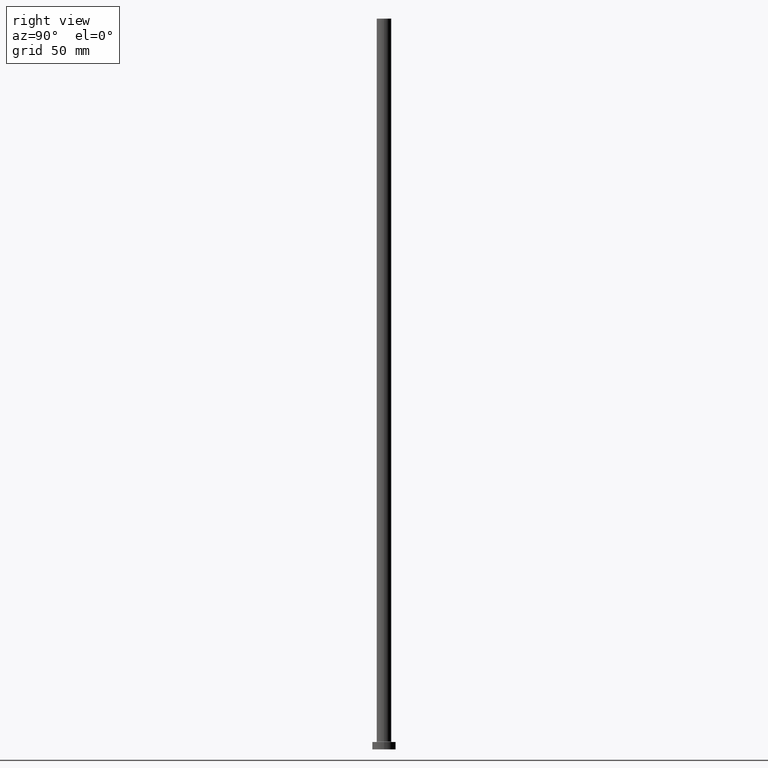
[diagram: clean part render]
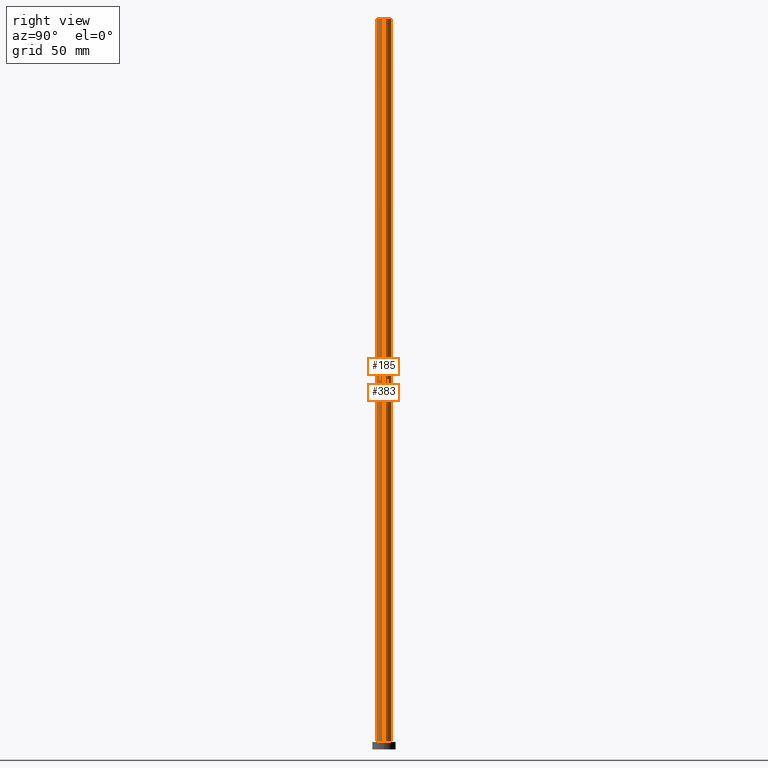
[diagram: same view with one multi-face feature highlighted, each face labeled with its STEP entity id]
A machine part, right view. The highlighted faces form ONE feature: a constant-radius fillet chain: 2 tangent blend faces with common blend radius 5 mm. The faces share edges in the B-rep.
Their STEP definitions:
[1] entity #185 (Cylinder):
#23 = AXIS2_PLACEMENT_3D ( 'NONE', #158, #210, #303 ) ;
#26 = EDGE_CURVE ( 'NONE', #379, #63, #93, .T. ) ;
#36 = CYLINDRICAL_SURFACE ( 'NONE', #190, 5.000000000000000000 ) ;
#39 = FACE_OUTER_BOUND ( 'NONE', #308, .T. ) ;
#49 = AXIS2_PLACEMENT_3D ( 'NONE', #273, #264, #275 ) ;
#51 = VECTOR ( 'NONE', #219, 1000.000000000000000 ) ;
#58 = VERTEX_POINT ( 'NONE', #196 ) ;
#63 = VERTEX_POINT ( 'NONE', #128 ) ;
#76 = ORIENTED_EDGE ( 'NONE', *, *, #98, .F. ) ;
#92 = ORIENTED_EDGE ( 'NONE', *, *, #26, .T. ) ;
#93 = CIRCLE ( 'NONE', #49, 5.000000000000000000 ) ;
#98 = EDGE_CURVE ( 'NONE', #414, #58, #227, .T. ) ;
#128 = CARTESIAN_POINT ( 'NONE',  ( 5.000000000000000000, 6.123233995736766282E-16, 5.500000000000005329 ) ) ;
#146 = DIRECTION ( 'NONE',  ( -1.000000000000000000, 0.000000000000000000, 0.000000000000000000 ) ) ;
#149 = VECTOR ( 'NONE', #155, 1000.000000000000000 ) ;
#153 = LINE ( 'NONE', #419, #51 ) ;
#155 = DIRECTION ( 'NONE',  ( -0.000000000000000000, -0.000000000000000000, -1.000000000000000000 ) ) ;
#158 = CARTESIAN_POINT ( 'NONE',  ( 0.000000000000000000, 0.000000000000000000, 500.0000000000000000 ) ) ;
#185 = ADVANCED_FACE ( 'NONE', ( #39 ), #36, .T. ) ;
#190 = AXIS2_PLACEMENT_3D ( 'NONE', #349, #356, #146 ) ;
#196 = CARTESIAN_POINT ( 'NONE',  ( 5.000000000000000000, 6.123233995736766282E-16, 500.0000000000000000 ) ) ;
#210 = DIRECTION ( 'NONE',  ( 0.000000000000000000, 0.000000000000000000, 1.000000000000000000 ) ) ;
#219 = DIRECTION ( 'NONE',  ( -0.000000000000000000, -0.000000000000000000, -1.000000000000000000 ) ) ;
#227 = CIRCLE ( 'NONE', #23, 5.000000000000000000 ) ;
#264 = DIRECTION ( 'NONE',  ( 0.000000000000000000, 0.000000000000000000, 1.000000000000000000 ) ) ;
#273 = CARTESIAN_POINT ( 'NONE',  ( 0.000000000000000000, 0.000000000000000000, 5.500000000000005329 ) ) ;
#275 = DIRECTION ( 'NONE',  ( 1.000000000000000000, 0.000000000000000000, 0.000000000000000000 ) ) ;
#280 = EDGE_CURVE ( 'NONE', #58, #63, #153, .T. ) ;
#289 = CARTESIAN_POINT ( 'NONE',  ( -5.000000000000000000, 0.000000000000000000, 5.500000000000005329 ) ) ;
#303 = DIRECTION ( 'NONE',  ( 1.000000000000000000, 0.000000000000000000, 0.000000000000000000 ) ) ;
#308 = EDGE_LOOP ( 'NONE', ( #320, #76, #459, #92 ) ) ;
#320 = ORIENTED_EDGE ( 'NONE', *, *, #280, .F. ) ;
#349 = CARTESIAN_POINT ( 'NONE',  ( 0.000000000000000000, 0.000000000000000000, 500.0000000000000000 ) ) ;
#356 = DIRECTION ( 'NONE',  ( -0.000000000000000000, -0.000000000000000000, -1.000000000000000000 ) ) ;
#361 = EDGE_CURVE ( 'NONE', #414, #379, #362, .T. ) ;
#362 = LINE ( 'NONE', #422, #149 ) ;
#379 = VERTEX_POINT ( 'NONE', #289 ) ;
#394 = CARTESIAN_POINT ( 'NONE',  ( -5.000000000000000000, 0.000000000000000000, 500.0000000000000000 ) ) ;
#414 = VERTEX_POINT ( 'NONE', #394 ) ;
#419 = CARTESIAN_POINT ( 'NONE',  ( 5.000000000000000000, 6.123233995736766282E-16, 500.0000000000000000 ) ) ;
#422 = CARTESIAN_POINT ( 'NONE',  ( -5.000000000000000000, 0.000000000000000000, 500.0000000000000000 ) ) ;
#459 = ORIENTED_EDGE ( 'NONE', *, *, #361, .T. ) ;
[2] entity #383 (Cylinder):
#6 = CARTESIAN_POINT ( 'NONE',  ( 0.000000000000000000, 0.000000000000000000, 500.0000000000000000 ) ) ;
#27 = DIRECTION ( 'NONE',  ( 1.000000000000000000, 0.000000000000000000, 0.000000000000000000 ) ) ;
#51 = VECTOR ( 'NONE', #219, 1000.000000000000000 ) ;
#58 = VERTEX_POINT ( 'NONE', #196 ) ;
#63 = VERTEX_POINT ( 'NONE', #128 ) ;
#113 = FACE_OUTER_BOUND ( 'NONE', #240, .T. ) ;
#114 = ORIENTED_EDGE ( 'NONE', *, *, #235, .T. ) ;
#128 = CARTESIAN_POINT ( 'NONE',  ( 5.000000000000000000, 6.123233995736766282E-16, 5.500000000000005329 ) ) ;
#149 = VECTOR ( 'NONE', #155, 1000.000000000000000 ) ;
#153 = LINE ( 'NONE', #419, #51 ) ;
#155 = DIRECTION ( 'NONE',  ( -0.000000000000000000, -0.000000000000000000, -1.000000000000000000 ) ) ;
#162 = ORIENTED_EDGE ( 'NONE', *, *, #280, .T. ) ;
#163 = CIRCLE ( 'NONE', #343, 5.000000000000000000 ) ;
#178 = ORIENTED_EDGE ( 'NONE', *, *, #361, .F. ) ;
#183 = AXIS2_PLACEMENT_3D ( 'NONE', #6, #427, #307 ) ;
#196 = CARTESIAN_POINT ( 'NONE',  ( 5.000000000000000000, 6.123233995736766282E-16, 500.0000000000000000 ) ) ;
#202 = AXIS2_PLACEMENT_3D ( 'NONE', #433, #385, #215 ) ;
#215 = DIRECTION ( 'NONE',  ( -1.000000000000000000, 0.000000000000000000, 0.000000000000000000 ) ) ;
#219 = DIRECTION ( 'NONE',  ( -0.000000000000000000, -0.000000000000000000, -1.000000000000000000 ) ) ;
#235 = EDGE_CURVE ( 'NONE', #63, #379, #163, .T. ) ;
#239 = EDGE_CURVE ( 'NONE', #58, #414, #390, .T. ) ;
#240 = EDGE_LOOP ( 'NONE', ( #316, #162, #114, #178 ) ) ;
#280 = EDGE_CURVE ( 'NONE', #58, #63, #153, .T. ) ;
#289 = CARTESIAN_POINT ( 'NONE',  ( -5.000000000000000000, 0.000000000000000000, 5.500000000000005329 ) ) ;
#307 = DIRECTION ( 'NONE',  ( 1.000000000000000000, 0.000000000000000000, 0.000000000000000000 ) ) ;
#316 = ORIENTED_EDGE ( 'NONE', *, *, #239, .F. ) ;
#343 = AXIS2_PLACEMENT_3D ( 'NONE', #424, #378, #27 ) ;
#360 = CYLINDRICAL_SURFACE ( 'NONE', #202, 5.000000000000000000 ) ;
#361 = EDGE_CURVE ( 'NONE', #414, #379, #362, .T. ) ;
#362 = LINE ( 'NONE', #422, #149 ) ;
#378 = DIRECTION ( 'NONE',  ( 0.000000000000000000, 0.000000000000000000, 1.000000000000000000 ) ) ;
#379 = VERTEX_POINT ( 'NONE', #289 ) ;
#383 = ADVANCED_FACE ( 'NONE', ( #113 ), #360, .T. ) ;
#385 = DIRECTION ( 'NONE',  ( -0.000000000000000000, -0.000000000000000000, -1.000000000000000000 ) ) ;
#390 = CIRCLE ( 'NONE', #183, 5.000000000000000000 ) ;
#394 = CARTESIAN_POINT ( 'NONE',  ( -5.000000000000000000, 0.000000000000000000, 500.0000000000000000 ) ) ;
#414 = VERTEX_POINT ( 'NONE', #394 ) ;
#419 = CARTESIAN_POINT ( 'NONE',  ( 5.000000000000000000, 6.123233995736766282E-16, 500.0000000000000000 ) ) ;
#422 = CARTESIAN_POINT ( 'NONE',  ( -5.000000000000000000, 0.000000000000000000, 500.0000000000000000 ) ) ;
#424 = CARTESIAN_POINT ( 'NONE',  ( 0.000000000000000000, 0.000000000000000000, 5.500000000000005329 ) ) ;
#427 = DIRECTION ( 'NONE',  ( 0.000000000000000000, 0.000000000000000000, 1.000000000000000000 ) ) ;
#433 = CARTESIAN_POINT ( 'NONE',  ( 0.000000000000000000, 0.000000000000000000, 500.0000000000000000 ) ) ;